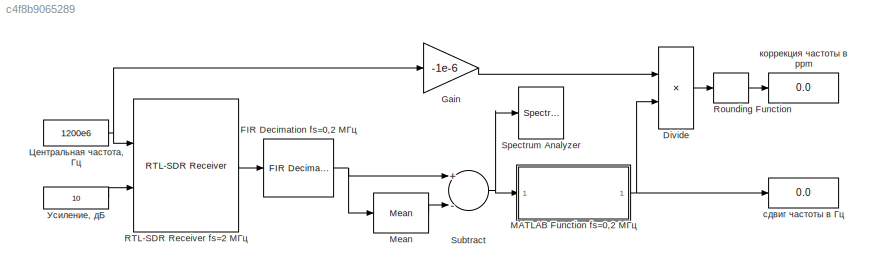
MODEL slx_c4f8b9065289
KIND model
CONFIG AbsTol = auto
CONFIG EnableMultiTasking = off
CONFIG FixedStep = auto
CONFIG MaxStep = auto
CONFIG MinStep = auto
CONFIG RelTol = 1e-3
CONFIG SampleTimeConstraint = Unconstrained
CONFIG Solver = VariableStepAuto
CONFIG SolverName = VariableStepAuto
CONFIG StartTime = 0.0
CONFIG StopTime = inf
BLOCK [Product] Divide
  InputSameDT = off
  Inputs = /*
  OutDataTypeStr = Inherit: Inherit via internal rule
  Ports = [2, 1]
  RndMeth = Floor
  SaturateOnIntegerOverflow = off
BLOCK [Reference] FIR Decimation fs=0,2 МГц  REF=dspmlti4/FIR
Decimation
  Ports = [1, 1]
  SourceBlock = dspmlti4/FIR\nDecimation
  SourceProductBaseCode = DS
  SourceProductName = DSP System Toolbox
  SourceType = FIR Decimation
  UserDataPersistent = on
BLOCK [Gain] Gain
  Gain = -1e-6
  OutDataTypeStr = Inherit: Inherit via internal rule
  ParamDataTypeStr = Inherit: Inherit via internal rule
  SaturateOnIntegerOverflow = off
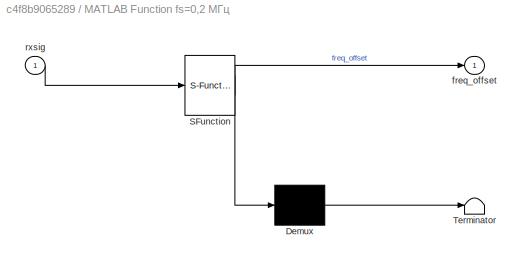
BLOCK [SubSystem] MATLAB Function fs=0,2 МГц
  ErrorFcn = Stateflow.Translate.translate
  PermitHierarchicalResolution = ExplicitOnly
  Ports = [1, 1]
  RequestExecContextInheritance = off
  SFBlockType = MATLAB Function
  TreatAsAtomicUnit = on
BLOCK [Demux] MATLAB Function fs=0,2 МГц/ Demux 
  Outputs = 1
  Ports = [1, 1]
BLOCK [S-Function] MATLAB Function fs=0,2 МГц/ SFunction 
  EnableBusSupport = on
  FunctionName = sf_sfun
  PortCounts = [1 2]
  Ports = [1, 2]
  SFcnIsStateOwnerBlock = off
  SFunctionDeploymentMode = off
  Tag = Stateflow S-Function lb233_rtlsdr_rx_ppm 2
BLOCK [Terminator] MATLAB Function fs=0,2 МГц/ Terminator 
BLOCK [Outport] MATLAB Function fs=0,2 МГц/freq_offset
  IconDisplay = Port number
BLOCK [Inport] MATLAB Function fs=0,2 МГц/rxsig
  IconDisplay = Port number
BLOCK [Reference] Mean  REF=dspstat3/Mean
  Ports = [1, 1]
  SourceBlock = dspstat3/Mean
  SourceProductBaseCode = DS
  SourceProductName = DSP System Toolbox
  SourceType = Mean
  UserDataPersistent = on
BLOCK [Reference] RTL-SDR Receiver fs=2 МГц  REF=sdrrlib/RTL-SDR
Receiver
  Ports = [2, 1]
  SourceBlock = sdrrlib/RTL-SDR\nReceiver
  SourceProductBaseCode = RTLSDR
  SourceProductName = Communications System Toolbox Support Package for RTL-SDR Radio
  SourceType = RTL-SDR Receiver
BLOCK [Rounding] Rounding Function
BLOCK [SpectrumAnalyzer] Spectrum Analyzer
  Ports = [1]
  ScopeSpecificationString = spbscopes.SpectrumAnalyzerBlockCfg('CurrentConfiguration', extmgr.ConfigurationSet(extmgr.Configuration('Core','General UI',true,'FigureColor',[1 1 1]),extmgr.Configuration('Core','Source UI',true),extmgr.Configuration('Sources','WiredSimulink',true),extmgr.Configuration('Sources','File',false),extmgr.Configuration('Sources','Simulink',false),extmgr.Configuration('Sources','Streaming',false),extmg...<+3313ch>
BLOCK [Sum] Subtract
  InputSameDT = off
  Inputs = +-
  OutDataTypeStr = Inherit: Inherit via internal rule
  Ports = [2, 1]
  SaturateOnIntegerOverflow = off
BLOCK [Constant] Усиление, дБ
  Value = 10
BLOCK [Constant] Центральная частота, Гц
  Value = 1200e6
BLOCK [Display] коррекция частоты в ppm
  Decimation = 1
  Ports = [1]
BLOCK [Display] сдвиг частоты в Гц
  Decimation = 1
  Ports = [1]
LINE Divide:1 -> Rounding Function:1
NET FIR Decimation fs=0,2 МГц:1 -> Mean:1, Subtract:1
LINE Gain:1 -> Divide:1
NET MATLAB Function fs=0,2 МГц:1 -> Divide:2, сдвиг частоты в Гц:1
LINE Mean:1 -> Subtract:2
LINE RTL-SDR Receiver fs=2 МГц:1 -> FIR Decimation fs=0,2 МГц:1
LINE Rounding Function:1 -> коррекция частоты в ppm:1
NET Subtract:1 -> MATLAB Function fs=0,2 МГц:1, Spectrum Analyzer:1
LINE Усиление, дБ:1 -> RTL-SDR Receiver fs=2 МГц:2
NET Центральная частота, Гц:1 -> Gain:1, RTL-SDR Receiver fs=2 МГц:1
note: NET lines group one-source signal fan-out (src -> all destinations, sorted); 1:1 wires keep LINE
CHART MATLAB Function
fs=0,2 МГц states=1 transitions=1
  STATE_LABEL 'eML_blk_kernel()'
  STATE_LABEL 'SCRIPT:\nfunction freq_offset  = freqoffset(rxsig)\n% freq_offset - входной сигнал\n% freq_offset - сдвиг частот, Гц\nnfft = 8192; % размерность БПФ\nfs = 0.2e6;  % частота дискретизации входного сигнала, Гц\ndelta_f = fs/nfft; % БПФ разрешение по частоте // fft bin\n% Вычисление БПФ сигнала rxsig: [+ve freqs , -ve freqs]\nfft_sig = fft(rxsig,nfft);    \n% Преобразование сигнала fft_sig: [-ve freqs , +ve f...<+354ch>'
